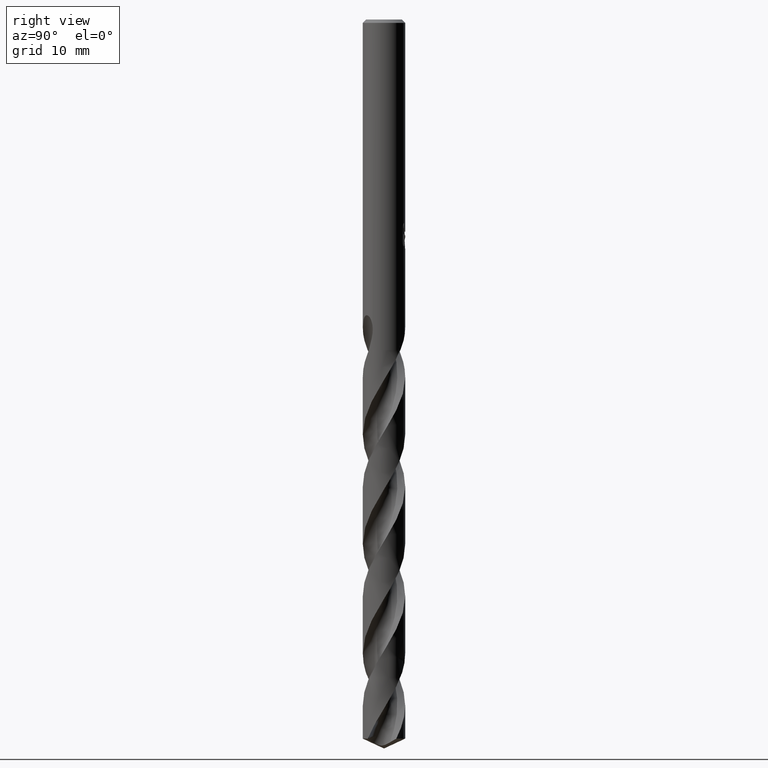
[diagram: clean part render]
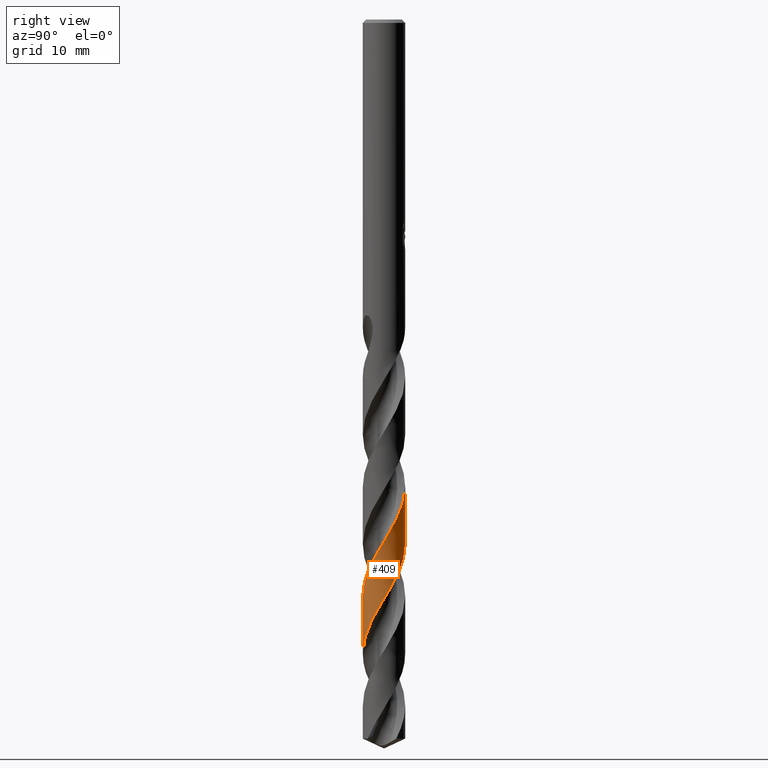
[diagram: same view with one face highlighted and labeled with its STEP entity id]
A machine part, right view. The second image highlights one B-rep face of the part: STEP entity #409.
In plain terms, the highlighted conical surface has half-angle 0 deg.
Its self-contained STEP definition (entity closure, byte-faithful):
#281=EDGE_CURVE('',#633,#401,#780,.T.);
#299=EDGE_CURVE('',#427,#709,#798,.T.);
#401=VERTEX_POINT('',#909);
#409=ADVANCED_FACE('',(#918),#919,.T.);
#427=VERTEX_POINT('',#939);
#621=EDGE_CURVE('',#633,#709,#1152,.T.);
#631=EDGE_CURVE('',#427,#401,#1163,.T.);
#633=VERTEX_POINT('',#1165);
#709=VERTEX_POINT('',#1247);
#780=B_SPLINE_CURVE_WITH_KNOTS('',3,(#1868,#1869,#1870,#1871,#1872,#1873,#1874,#1875,#1876,#1877,#1878,#1879,#1880,#1881,#1882,#1883,#1884,#1885,#1886,#1887,#1888,#1889,#1890,#1891,#1892,#1893,#1894,#1895,#1896,#1897,#1898,#1899,#1900,#1901,#1902,#1903,#1904,#1905,#1906,#1907,#1908,#1909,#1910,#1911,#1912,#1913,#1914,#1915,#1916,#1917,#1918,#1919,#1920,#1921,#1922,#1923,#1924,#1925,#1926,#1927,#1928,#1929,#1930,#1931,#1932,#1933,#1934,#1935,#1936,#1937,#1938,#1939,#1940,#1941,#1942,#1943,#1944,#1945,#1946,#1947,#1948,#1949,#1950,#1951,#1952,#1953,#1954,#1955,#1956,#1957,#1958,#1959,#1960,#1961,#1962,#1963,#1964,#1965,#1966,#1967,#1968,#1969,#1970,#1971,#1972,#1973,#1974,#1975,#1976,#1977,#1978,#1979,#1980,#1981,#1982,#1983,#1984,#1985,#1986,#1987,#1988,#1989,#1990,#1991,#1992,#1993,#1994,#1995,#1996,#1997,#1998,#1999,#2000,#2001,#2002,#2003,#2004,#2005,#2006,#2007,#2008,#2009,#2010,#2011,#2012,#2013,#2014,#2015,#2016,#2017,#2018,#2019,#2020,#2021,#2022,#2023,#2024,#2025,#2026,#2027,#2028,#2029,#2030,#2031,#2032,#2033,#2034,#2035,#2036,#2037,#2038,#2039,#2040,#2041,#2042,#2043,#2044,#2045,#2046,#2047,#2048,#2049,#2050,#2051,#2052,#2053),.UNSPECIFIED.,.F.,.F.,(4,2,2,2,2,2,2,2,2,2,2,2,2,2,2,2,2,2,2,2,2,2,2,2,2,2,2,2,2,2,2,2,2,2,2,2,2,2,2,2,2,2,2,2,2,2,2,2,2,2,2,2,2,2,2,2,2,2,2,2,2,2,2,2,2,2,2,2,2,2,2,2,2,2,2,2,2,2,2,2,2,2,2,2,2,2,2,2,2,2,2,2,4),(0.0,0.130197631691934,0.177790375154631,0.20352837875392,0.220477773174273,0.234485518691503,0.245967376914875,0.255309320033064,0.262862451433,0.268940527064288,0.273826369758257,0.277656987587669,0.28040462122601,0.282358492650839,0.283748031980026,0.558711843630576,0.62011222371354,0.66020049941823,0.692524605453398,0.729355090980869,0.792330234612566,0.833643482365751,0.901367118097999,1.15381635228199,1.40619876288596,1.58774940205914,1.67380141968575,1.85338322812626,2.29506270661106,4.13542105061356,5.00461126079501,5.17159259565805,6.53687756468259,6.93574310306155,7.68923974127355,8.12938232876279,8.5744064516874,9.98271598118927,10.3378960322548,11.1530445807223,11.5705488553828,11.9659135057265,13.4464712373786,13.4866936811887,14.69772421416,15.8444731832757,16.714434277566,16.8888541614119,18.1691452072515,19.0060888019089,19.8094675001382,20.6980458993568,21.5468583329051,21.9952297836868,23.406971863391,23.7585636740439,24.5787034695598,25.0165159198198,25.3966326474268,26.1676807432539,26.5856740651357,27.0259636646815,28.4423117199704,28.6178453861175,29.887606128225,30.8312605479075,31.6524604633438,32.0679552541681,33.5129706621341,33.6804597592663,35.0087108347904,35.4210594423622,36.8693705947139,36.9529259546718,38.1601294823307,39.3100676834008,40.1785708203634,40.3520111471677,41.6344169593832,42.094239637959,43.4947797878177,43.8509767470389,44.6579477207934,45.0744736150211,45.4741344429667,46.9419238798095,46.9825987660621,48.1656603916745,49.1883459185273,49.9640468392,50.5485074317741,51.4282284075704,52.3131001026529),.UNSPECIFIED.);
#798=B_SPLINE_CURVE_WITH_KNOTS('',3,(#2288,#2289,#2290,#2291,#2292,#2293,#2294,#2295,#2296,#2297,#2298,#2299,#2300,#2301,#2302,#2303,#2304,#2305,#2306,#2307,#2308,#2309,#2310,#2311,#2312,#2313,#2314,#2315,#2316,#2317,#2318,#2319,#2320,#2321,#2322,#2323,#2324,#2325,#2326,#2327,#2328,#2329,#2330,#2331,#2332,#2333,#2334,#2335,#2336,#2337,#2338,#2339,#2340,#2341,#2342,#2343,#2344,#2345,#2346,#2347,#2348,#2349,#2350,#2351,#2352,#2353,#2354,#2355,#2356,#2357,#2358,#2359,#2360,#2361,#2362,#2363,#2364,#2365,#2366,#2367,#2368,#2369,#2370,#2371,#2372,#2373,#2374,#2375,#2376,#2377,#2378,#2379,#2380,#2381,#2382,#2383,#2384,#2385,#2386,#2387,#2388,#2389,#2390,#2391,#2392,#2393,#2394,#2395,#2396,#2397,#2398,#2399,#2400,#2401,#2402,#2403,#2404,#2405,#2406,#2407,#2408,#2409,#2410,#2411,#2412,#2413,#2414,#2415,#2416,#2417,#2418,#2419,#2420,#2421,#2422,#2423,#2424,#2425,#2426,#2427,#2428,#2429,#2430,#2431,#2432,#2433,#2434,#2435,#2436,#2437,#2438,#2439),.UNSPECIFIED.,.F.,.F.,(4,2,2,2,2,2,2,2,2,2,2,2,2,2,2,2,2,2,2,2,2,2,2,2,2,2,2,2,2,2,2,2,2,2,2,2,2,2,2,2,2,2,2,2,2,2,2,2,2,2,2,2,2,2,2,2,2,2,2,2,2,2,2,2,2,2,2,2,2,2,2,2,2,2,2,4),(0.0,0.843083054638902,1.66804286657641,2.51310423940939,3.36250952221617,3.57473579094262,4.20621494976828,5.0525712826218,5.8978571349749,6.74385602508176,7.59183024873206,8.39977147456025,9.27828082982898,10.0859241058606,10.9794898650953,11.70412571583,12.1541521877217,12.8041614260335,13.6523683667618,14.4999247276601,15.3475843639569,16.1976753466537,16.9990964033029,17.8544970287512,19.2432046717288,19.3449379990912,20.1974135772461,20.6288419063677,21.4504111602038,22.3012801259191,23.149091867137,24.037501226588,24.9226112893588,25.8135300813571,26.6289010674702,27.4804265663469,28.3291974930779,29.1801095271964,30.0315289585334,30.8657588302019,31.7588635651947,32.5902035515715,33.484200048639,34.3068304630442,35.164152534063,35.9034489644532,36.3361763551521,36.9909870583652,37.8439098675173,38.6961846119663,39.5485741243822,40.403405385222,41.2114476260207,42.0714499378239,43.4738025513434,43.5735670078129,45.2229303149307,45.2884315362778,46.236365421632,46.6698779453753,47.4038655321789,48.1120624154248,49.4758027034848,49.9857161280815,50.8773361897484,52.1588135294673,52.4571576783106,52.8065841090327,53.0051249137027,53.1100647107522,53.1494684978502,53.1879739384339,53.2419326191836,53.3741587339091,53.566967698482,53.7365182293581),.UNSPECIFIED.);
#909=CARTESIAN_POINT('',(-3.8052472965525E-012,-2.4999632829156,-68.0052376304482));
#918=FACE_OUTER_BOUND('',#4148,.T.);
#919=CONICAL_SURFACE('',#4149,2.49995,2.18177545767606E-006);
#939=CARTESIAN_POINT('',(8.81288315411456E-015,-2.49997813426346,-74.8122386920678));
#1152=LINE('',#6170,#6171);
#1163=LINE('',#6369,#6370);
#1165=CARTESIAN_POINT('',(-3.84068124629203E-013,2.49993510164427,-55.0885686660213));
#1247=CARTESIAN_POINT('',(5.39811150002052E-015,2.49994995181934,-61.8950321944106));
#1868=CARTESIAN_POINT('',(1.73762264421359,-1.79726670554439,-39.005));
#1869=CARTESIAN_POINT('',(1.72221670660203,-1.81216149651107,-39.0427398167185));
#1870=CARTESIAN_POINT('',(1.70656102459511,-1.82691528514,-39.0805299842807));
#1871=CARTESIAN_POINT('',(1.68477385877601,-1.84691666771552,-39.132084126244));
#1872=CARTESIAN_POINT('',(1.67890608432564,-1.85225247355344,-39.1458701177844));
#1873=CARTESIAN_POINT('',(1.66979965999006,-1.86045409262312,-39.1671030968514));
#1874=CARTESIAN_POINT('',(1.6665921931476,-1.86332793147464,-39.1745512616789));
#1875=CARTESIAN_POINT('',(1.66125188771692,-1.86808786798156,-39.1869001818933));
#1876=CARTESIAN_POINT('',(1.65912641324893,-1.86997586772289,-39.1918015904184));
#1877=CARTESIAN_POINT('',(1.65523448034297,-1.87342108093971,-39.2007514112967));
#1878=CARTESIAN_POINT('',(1.65346990474639,-1.87497868454651,-39.2047998382906));
#1879=CARTESIAN_POINT('',(1.65025218076797,-1.87781090441237,-39.212164975987));
#1880=CARTESIAN_POINT('',(1.64880034837366,-1.87908581770011,-39.2154817723948));
#1881=CARTESIAN_POINT('',(1.64616271844481,-1.88139661034725,-39.2214959993082));
#1882=CARTESIAN_POINT('',(1.64497782184645,-1.88243270838049,-39.2241935325903));
#1883=CARTESIAN_POINT('',(1.64283190379387,-1.88430556600924,-39.2290712419937));
#1884=CARTESIAN_POINT('',(1.64187148753852,-1.88514248144522,-39.2312515116784));
#1885=CARTESIAN_POINT('',(1.64013624770314,-1.88665225103565,-39.2351857055944));
#1886=CARTESIAN_POINT('',(1.63936182347595,-1.88732521304038,-39.2369397048174));
#1887=CARTESIAN_POINT('',(1.63796360571177,-1.88853873039322,-39.2401032792832));
#1888=CARTESIAN_POINT('',(1.63734007017493,-1.88907935794587,-39.2415129095426));
#1889=CARTESIAN_POINT('',(1.63622685243884,-1.89004359162006,-39.2440274811753));
#1890=CARTESIAN_POINT('',(1.63573735022829,-1.89046725027963,-39.2451324661601));
#1891=CARTESIAN_POINT('',(1.63489625424158,-1.891194637869,-39.2470298910802));
#1892=CARTESIAN_POINT('',(1.63454479849379,-1.8914984089193,-39.2478223687147));
#1893=CARTESIAN_POINT('',(1.63394317152742,-1.89201811553894,-39.2491783095331));
#1894=CARTESIAN_POINT('',(1.6336930721942,-1.89223407362107,-39.2497417936993));
#1895=CARTESIAN_POINT('',(1.63326498410932,-1.89260357490171,-39.2507059733115));
#1896=CARTESIAN_POINT('',(1.63308703165996,-1.89275712955,-39.2511066795625));
#1897=CARTESIAN_POINT('',(1.59768827467727,-1.92329390334449,-39.3307973431245));
#1898=CARTESIAN_POINT('',(1.56173305940736,-1.95263587295688,-39.4079897389707));
#1899=CARTESIAN_POINT('',(1.51529937823476,-1.98833790221133,-39.5035335497088));
#1900=CARTESIAN_POINT('',(1.50676261699394,-1.99481519628202,-39.5209409170906));
#1901=CARTESIAN_POINT('',(1.49253845753209,-2.00546359211547,-39.5497064849976));
#1902=CARTESIAN_POINT('',(1.48689483832142,-2.00965156674779,-39.5610584803544));
#1903=CARTESIAN_POINT('',(1.47665217057268,-2.01718539954166,-39.5815589911225));
#1904=CARTESIAN_POINT('',(1.47206439422175,-2.02053587318609,-39.5907046804538));
#1905=CARTESIAN_POINT('',(1.46221438134983,-2.02767792271192,-39.6102676400649));
#1906=CARTESIAN_POINT('',(1.45694946715705,-2.03146429122998,-39.6206800899933));
#1907=CARTESIAN_POINT('',(1.442628801273,-2.04167882385011,-39.6488936967641));
#1908=CARTESIAN_POINT('',(1.43354321913018,-2.04806853251804,-39.6666768180992));
#1909=CARTESIAN_POINT('',(1.41841371424754,-2.05855855620309,-39.6961336551434));
#1910=CARTESIAN_POINT('',(1.41240151232439,-2.06268827216241,-39.707799013712));
#1911=CARTESIAN_POINT('',(1.39648492128253,-2.07351896923282,-39.7385934416108));
#1912=CARTESIAN_POINT('',(1.38645572626539,-2.08023988151913,-39.7579183246704));
#1913=CARTESIAN_POINT('',(1.33825286274896,-2.11202776867614,-39.850714132875));
#1914=CARTESIAN_POINT('',(1.29978397545996,-2.13590606280694,-39.9242667018336));
#1915=CARTESIAN_POINT('',(1.22212042341784,-2.18127377826482,-40.0713014549993));
#1916=CARTESIAN_POINT('',(1.18278949815126,-2.20284394519436,-40.1450416463482));
#1917=CARTESIAN_POINT('',(1.11440699690886,-2.23800040658369,-40.2717269713334));
#1918=CARTESIAN_POINT('',(1.08552744282208,-2.25214960499147,-40.324777766154));
#1919=CARTESIAN_POINT('',(1.0425864608196,-2.27217096786104,-40.4029347680828));
#1920=CARTESIAN_POINT('',(1.02871718540807,-2.27848388635326,-40.4280691486789));
#1921=CARTESIAN_POINT('',(0.985721204727634,-2.29758171853032,-40.505642046939));
#1922=CARTESIAN_POINT('',(0.956390312539644,-2.30994541040799,-40.5580870825097));
#1923=CARTESIAN_POINT('',(0.85411863468997,-2.3507720889934,-40.7395141183298));
#1924=CARTESIAN_POINT('',(0.780038376814157,-2.37638508301876,-40.8683905498814));
#1925=CARTESIAN_POINT('',(0.391432546729204,-2.4905832223596,-41.5344808162803));
#1926=CARTESIAN_POINT('',(0.0630625212742105,-2.52034468995881,-42.0661903146631));
#1927=CARTESIAN_POINT('',(-0.414954081738593,-2.47004641240514,-42.8573035585666));
#1928=CARTESIAN_POINT('',(-0.566565388169622,-2.43975026512842,-43.1103106485351));
#1929=CARTESIAN_POINT('',(-0.742925455909151,-2.38715091822364,-43.4126874771301));
#1930=CARTESIAN_POINT('',(-0.771184479173955,-2.37817201265883,-43.46140214519));
#1931=CARTESIAN_POINT('',(-1.02895446892957,-2.29119292955219,-43.9086842394604));
#1932=CARTESIAN_POINT('',(-1.246222100678,-2.18066355254979,-44.305789285099));
#1933=CARTESIAN_POINT('',(-1.50199192559868,-1.99965067337997,-44.8207858671826));
#1934=CARTESIAN_POINT('',(-1.55802988859462,-1.95630258915173,-44.9371220914516));
#1935=CARTESIAN_POINT('',(-1.71435643426653,-1.8244005612891,-45.2736474725385));
#1936=CARTESIAN_POINT('',(-1.80950686131011,-1.73007333497068,-45.493551775309));
#1937=CARTESIAN_POINT('',(-1.94757001603607,-1.56928413086855,-45.8421167710365));
#1938=CARTESIAN_POINT('',(-1.9956850681592,-1.50762424894824,-45.9705424846292));
#1939=CARTESIAN_POINT('',(-2.08650185248118,-1.37925304789749,-46.2289733195392));
#1940=CARTESIAN_POINT('',(-2.12905731640779,-1.31260746874783,-46.3587335521144));
#1941=CARTESIAN_POINT('',(-2.2928123543485,-1.0271901527444,-46.8999949869354));
#1942=CARTESIAN_POINT('',(-2.38406127359273,-0.792751671649316,-47.3094293713288));
#1943=CARTESIAN_POINT('',(-2.45282570176315,-0.487057406828887,-47.8243804051907));
#1944=CARTESIAN_POINT('',(-2.46433288196527,-0.425014239942788,-47.928047686551));
#1945=CARTESIAN_POINT('',(-2.4944724542108,-0.219435356481297,-48.2699172348265));
#1946=CARTESIAN_POINT('',(-2.50299728897073,-0.0746534747018654,-48.507793130346));
#1947=CARTESIAN_POINT('',(-2.49686002576894,0.144212957490745,-48.8678256379224));
#1948=CARTESIAN_POINT('',(-2.49148332503486,0.21822900258531,-48.9896765224248));
#1949=CARTESIAN_POINT('',(-2.47461731200151,0.361685688382168,-49.2270622464661));
#1950=CARTESIAN_POINT('',(-2.46348014434329,0.43105412794689,-49.3424160396705));
#1951=CARTESIAN_POINT('',(-2.39687484633294,0.757452923186245,-49.8904529944138));
#1952=CARTESIAN_POINT('',(-2.30396457229818,1.00528405973081,-50.3205361890221));
#1953=CARTESIAN_POINT('',(-2.17055308603022,1.24031396752464,-50.7647313014915));
#1954=CARTESIAN_POINT('',(-2.16699836542082,1.24651418986113,-50.7764794317106));
#1955=CARTESIAN_POINT('',(-2.05560329015403,1.43889572449611,-51.141950209957));
#1956=CARTESIAN_POINT('',(-1.92416368597859,1.61045055144872,-51.495028710087));
#1957=CARTESIAN_POINT('',(-1.62865684837542,1.90752571817185,-52.1838015390894));
#1958=CARTESIAN_POINT('',(-1.46784757861972,2.03384979617745,-52.5176359528675));
#1959=CARTESIAN_POINT('',(-1.16137488336555,2.21917361969995,-53.1069410608572));
#1960=CARTESIAN_POINT('',(-1.02199000828033,2.28672308679069,-53.3604313999156));
#1961=CARTESIAN_POINT('',(-0.84816495856232,2.35185825992236,-53.6655025816073));
#1962=CARTESIAN_POINT('',(-0.818942506058692,2.3621926687481,-53.716434109067));
#1963=CARTESIAN_POINT('',(-0.573692454286333,2.44382752921672,-54.1414779515867));
#1964=CARTESIAN_POINT('',(-0.348955845156309,2.48590158630499,-54.5145398194744));
#1965=CARTESIAN_POINT('',(0.0270049701198556,2.5042137038711,-55.133172526691));
#1966=CARTESIAN_POINT('',(0.175900721781753,2.4981661438644,-55.3772363046867));
#1967=CARTESIAN_POINT('',(0.464790630019287,2.46049045209599,-55.8567056201322));
#1968=CARTESIAN_POINT('',(0.604508127207441,2.42994963417364,-56.0910908322707));
#1969=CARTESIAN_POINT('',(0.891790187916859,2.34080265008148,-56.5854768256165));
#1970=CARTESIAN_POINT('',(1.03781802207958,2.27981064526435,-56.8445192605677));
#1971=CARTESIAN_POINT('',(1.31005776684883,2.13452043822235,-57.3523705681376));
#1972=CARTESIAN_POINT('',(1.43643422912037,2.05161726970483,-57.5999366736939));
#1973=CARTESIAN_POINT('',(1.61704404771828,1.908200772611,-57.9789697913505));
#1974=CARTESIAN_POINT('',(1.67704256855403,1.85568966506796,-58.1098135324369));
#1975=CARTESIAN_POINT('',(1.91507992162554,1.62637934374597,-58.6535023700562));
#1976=CARTESIAN_POINT('',(2.06860607526792,1.42604673790405,-59.0642372693762));
#1977=CARTESIAN_POINT('',(2.21989258043884,1.15139495551216,-59.5795583397742));
#1978=CARTESIAN_POINT('',(2.24797897965403,1.09554497042027,-59.6822649708418));
#1979=CARTESIAN_POINT('',(2.33448401091334,0.906172746965637,-60.0248192304892));
#1980=CARTESIAN_POINT('',(2.38334417837827,0.768544167049374,-60.2643350747688));
#1981=CARTESIAN_POINT('',(2.4394697607514,0.552069812022624,-60.6320494054249));
#1982=CARTESIAN_POINT('',(2.45547806654354,0.475843779199551,-60.7599187190838));
#1983=CARTESIAN_POINT('',(2.47869376922195,0.332245516732774,-60.9989730828821));
#1984=CARTESIAN_POINT('',(2.48676712163694,0.265130067113753,-61.1099826133352));
#1985=CARTESIAN_POINT('',(2.50295379315463,0.0611890432458317,-61.4465581442003));
#1986=CARTESIAN_POINT('',(2.50254783727316,-0.0760975509355209,-61.6718326116566));
#1987=CARTESIAN_POINT('',(2.48456595904931,-0.286714062247579,-62.0194656868122));
#1988=CARTESIAN_POINT('',(2.47494514790809,-0.360452726773932,-62.1415815466732));
#1989=CARTESIAN_POINT('',(2.44846419160717,-0.510794356497426,-62.392466046371));
#1990=CARTESIAN_POINT('',(2.43126888609692,-0.5872084209836,-62.521006894772));
#1991=CARTESIAN_POINT('',(2.34378585840931,-0.905438229859661,-63.0638943904809));
#1992=CARTESIAN_POINT('',(2.24071781460994,-1.13685271001943,-63.4760984893335));
#1993=CARTESIAN_POINT('',(2.08791099973608,-1.37527263652291,-63.9414963220553));
#1994=CARTESIAN_POINT('',(2.07057443762275,-1.40123825269819,-63.9927963335258));
#1995=CARTESIAN_POINT('',(1.92387226168762,-1.6122918312783,-64.4154455151227));
#1996=CARTESIAN_POINT('',(1.77039981297749,-1.77946931158946,-64.7857985956036));
#1997=CARTESIAN_POINT('',(1.46733549876896,-2.03098686246946,-65.4330911141026));
#1998=CARTESIAN_POINT('',(1.32771027914844,-2.12488071194854,-65.7084336920051));
#1999=CARTESIAN_POINT('',(1.05110823976007,-2.27294523278201,-66.2247321612019));
#2000=CARTESIAN_POINT('',(0.916555074963194,-2.33046755069035,-66.4644280308115));
#2001=CARTESIAN_POINT('',(0.707414663814484,-2.39892355644006,-66.8260802065756));
#2002=CARTESIAN_POINT('',(0.636191868321249,-2.41878568977234,-66.9474537002626));
#2003=CARTESIAN_POINT('',(0.313871505795749,-2.49345713728035,-67.4917215581982));
#2004=CARTESIAN_POINT('',(0.0559555701218009,-2.51253193179825,-67.9122698264701));
#2005=CARTESIAN_POINT('',(-0.230090474049039,-2.48953156010603,-68.3839003387893));
#2006=CARTESIAN_POINT('',(-0.259747627385579,-2.48661215041334,-68.4328772521698));
#2007=CARTESIAN_POINT('',(-0.524039116510788,-2.45581743613788,-68.8704749844882));
#2008=CARTESIAN_POINT('',(-0.753787608708955,-2.39531614341811,-69.2577490573857));
#2009=CARTESIAN_POINT('',(-1.03927316358877,-2.27489226859338,-69.766952240898));
#2010=CARTESIAN_POINT('',(-1.105588436384,-2.24341087420524,-69.8874546553969));
#2011=CARTESIAN_POINT('',(-1.39808258121933,-2.0884428371007,-70.4319729770323));
#2012=CARTESIAN_POINT('',(-1.60585443600939,-1.93327794485146,-70.8536139094994));
#2013=CARTESIAN_POINT('',(-1.79665837356913,-1.73841662099282,-71.3018286944971));
#2014=CARTESIAN_POINT('',(-1.806969169611,-1.72769681941928,-71.3262723399918));
#2015=CARTESIAN_POINT('',(-1.96476889494222,-1.56067977692155,-71.7040100544973));
#2016=CARTESIAN_POINT('',(-2.09163782320909,-1.38604458212879,-72.0566583464519));
#2017=CARTESIAN_POINT('',(-2.29266225644196,-1.01759313768856,-72.7465770315811));
#2018=CARTESIAN_POINT('',(-2.36824520196094,-0.826531470386686,-73.0819775389277));
#2019=CARTESIAN_POINT('',(-2.45853699579652,-0.478911544604253,-73.672929395726));
#2020=CARTESIAN_POINT('',(-2.48345117944621,-0.325995803755994,-73.9264821029627));
#2021=CARTESIAN_POINT('',(-2.49619537400605,-0.140879400776419,-74.2314305443617));
#2022=CARTESIAN_POINT('',(-2.49774502715785,-0.110036718990689,-74.2821744590137));
#2023=CARTESIAN_POINT('',(-2.50595432241123,0.149015588977321,-74.708375993145));
#2024=CARTESIAN_POINT('',(-2.48189028744175,0.377221687822196,-75.0827573818879));
#2025=CARTESIAN_POINT('',(-2.40753272958682,0.678523564709723,-75.5928016165654));
#2026=CARTESIAN_POINT('',(-2.38401872864657,0.757005231945601,-75.7272334419523));
#2027=CARTESIAN_POINT('',(-2.27350594938451,1.06922781795036,-76.2720234422488));
#2028=CARTESIAN_POINT('',(-2.15556214620688,1.29063053809352,-76.680323220964));
#2029=CARTESIAN_POINT('',(-1.9689033405407,1.54187020558961,-77.194691553241));
#2030=CARTESIAN_POINT('',(-1.92914774330758,1.59132898306147,-77.2989331435565));
#2031=CARTESIAN_POINT('',(-1.79337196716673,1.74767770416976,-77.6396320487338));
#2032=CARTESIAN_POINT('',(-1.68997388910827,1.84785583660583,-77.8757696663752));
#2033=CARTESIAN_POINT('',(-1.52098827708027,1.98545375382011,-78.2341000061357));
#2034=CARTESIAN_POINT('',(-1.46139083560941,2.02972279342811,-78.3559964139301));
#2035=CARTESIAN_POINT('',(-1.34089737142117,2.11116024884567,-78.5949982485233));
#2036=CARTESIAN_POINT('',(-1.28024337054756,2.14848201040419,-78.711916674286));
#2037=CARTESIAN_POINT('',(-0.989850328296239,2.31050846171311,-79.2589573412748));
#2038=CARTESIAN_POINT('',(-0.742928009755047,2.40133587891679,-79.6865503569095));
#2039=CARTESIAN_POINT('',(-0.479258855027438,2.45363243992912,-80.1283469856413));
#2040=CARTESIAN_POINT('',(-0.47214396176952,2.45501148851007,-80.1402585285471));
#2041=CARTESIAN_POINT('',(-0.257884383321668,2.49557454007906,-80.4987255787633));
#2042=CARTESIAN_POINT('',(-0.046558778793296,2.50843639922293,-80.8447344743241));
#2043=CARTESIAN_POINT('',(0.345742673208156,2.48267030340087,-81.490977698953));
#2044=CARTESIAN_POINT('',(0.525700775519718,2.45087178072892,-81.7895612282239));
#2045=CARTESIAN_POINT('',(0.833124948074687,2.36113463721112,-82.316646598516));
#2046=CARTESIAN_POINT('',(0.962351364761756,2.31148685166901,-82.5435906723143));
#2047=CARTESIAN_POINT('',(1.18068039285936,2.20608833422603,-82.9421012265571));
#2048=CARTESIAN_POINT('',(1.27154488376819,2.15499326711574,-83.113060283767));
#2049=CARTESIAN_POINT('',(1.49048551989736,2.01320647504705,-83.54215790713));
#2050=CARTESIAN_POINT('',(1.61378375678757,1.91580023120019,-83.7995503167885));
#2051=CARTESIAN_POINT('',(1.84123677009895,1.69844936358085,-84.3165646011871));
#2052=CARTESIAN_POINT('',(1.94461385109078,1.57901363480882,-84.5747545377035));
#2053=CARTESIAN_POINT('',(2.03601740058076,1.45073538060268,-84.8342308546125));
#2288=CARTESIAN_POINT('',(-1.61904416076534,1.9049136477782,-84.8342308546125));
#2289=CARTESIAN_POINT('',(-1.73030245048948,1.81035114924859,-84.5941140361506));
#2290=CARTESIAN_POINT('',(-1.83285812364687,1.70643502484931,-84.3523628425534));
#2291=CARTESIAN_POINT('',(-2.01694541256704,1.48401810570645,-83.8771588573506));
#2292=CARTESIAN_POINT('',(-2.09844005231934,1.36637078175123,-83.6435267278447));
#2293=CARTESIAN_POINT('',(-2.24223578281594,1.11525833942451,-83.1680450574665));
#2294=CARTESIAN_POINT('',(-2.30364667208482,0.982153947810092,-82.926498494044));
#2295=CARTESIAN_POINT('',(-2.40279534109374,0.705836091355642,-82.4440535319063));
#2296=CARTESIAN_POINT('',(-2.44016675337095,0.563215823820068,-82.2035854338965));
#2297=CARTESIAN_POINT('',(-2.47092775821712,0.38188458335885,-81.9013657760394));
#2298=CARTESIAN_POINT('',(-2.47627126519853,0.345535898857718,-81.8409538259136));
#2299=CARTESIAN_POINT('',(-2.4943121719894,0.200743870630057,-81.6006164399236));
#2300=CARTESIAN_POINT('',(-2.50071407449235,0.0915018902334625,-81.4199131088757));
#2301=CARTESIAN_POINT('',(-2.49887374981121,-0.16464990555372,-80.9986717059998));
#2302=CARTESIAN_POINT('',(-2.48491029320295,-0.311008745782048,-80.7588451766232));
#2303=CARTESIAN_POINT('',(-2.43146650675097,-0.59951354861451,-80.2768715720761));
#2304=CARTESIAN_POINT('',(-2.39217949408288,-0.740853995146749,-80.0349574193276));
#2305=CARTESIAN_POINT('',(-2.28929284418535,-1.01516332526188,-79.5530813389774));
#2306=CARTESIAN_POINT('',(-2.22584375494678,-1.14763909978102,-79.3134486132993));
#2307=CARTESIAN_POINT('',(-2.07618475171659,-1.40036000131957,-78.8310691637181));
#2308=CARTESIAN_POINT('',(-1.99036771871385,-1.51983914447561,-78.588533935986));
#2309=CARTESIAN_POINT('',(-1.80336668681012,-1.73705269492233,-78.1169892513679));
#2310=CARTESIAN_POINT('',(-1.70333743422637,-1.83525984627696,-77.8881531586018));
#2311=CARTESIAN_POINT('',(-1.47828803533214,-2.02182395238271,-77.4082574275265));
#2312=CARTESIAN_POINT('',(-1.35259123307695,-2.10795815705749,-77.1572310045832));
#2313=CARTESIAN_POINT('',(-1.0981125261393,-2.25023593837381,-76.6774093570044));
#2314=CARTESIAN_POINT('',(-0.97062539408151,-2.30810908220714,-76.4488177316941));
#2315=CARTESIAN_POINT('',(-0.693020451042249,-2.40698662992373,-75.9651304596905));
#2316=CARTESIAN_POINT('',(-0.542904371539681,-2.44519458044319,-75.7100770532001));
#2317=CARTESIAN_POINT('',(-0.26683020752651,-2.48884768927043,-75.2499859275215));
#2318=CARTESIAN_POINT('',(-0.141778061734029,-2.49910575910554,-75.0448607245617));
#2319=CARTESIAN_POINT('',(0.0615749082536149,-2.50043352911697,-74.7112109707396));
#2320=CARTESIAN_POINT('',(0.139363901202381,-2.49729948474765,-74.583545042677));
#2321=CARTESIAN_POINT('',(0.328600999998196,-2.48082739658658,-74.270796852484));
#2322=CARTESIAN_POINT('',(0.439679271707452,-2.46357560366053,-74.0851852269267));
#2323=CARTESIAN_POINT('',(0.692480264582732,-2.40663092380166,-73.6590514114439));
#2324=CARTESIAN_POINT('',(0.832524417716884,-2.36184897511326,-73.4192066326005));
#2325=CARTESIAN_POINT('',(1.10313463218582,-2.24821777481941,-72.9370961990108));
#2326=CARTESIAN_POINT('',(1.23294784022147,-2.17971739408404,-72.6950548585672));
#2327=CARTESIAN_POINT('',(1.47910617013291,-2.0207852941405,-72.2130964248914));
#2328=CARTESIAN_POINT('',(1.59502062454969,-1.93061581807798,-71.9735120292661));
#2329=CARTESIAN_POINT('',(1.81012492314567,-1.73058784604798,-71.4911062929622));
#2330=CARTESIAN_POINT('',(1.90863487692411,-1.62127069557093,-71.248495559264));
#2331=CARTESIAN_POINT('',(2.08022417426271,-1.39343842230922,-70.7792262313213));
#2332=CARTESIAN_POINT('',(2.15422318487272,-1.27608056994084,-70.5527067255508));
#2333=CARTESIAN_POINT('',(2.28640130922515,-1.02181147127716,-70.0822799818975));
#2334=CARTESIAN_POINT('',(2.34275473876187,-0.884926485191384,-69.8384483404955));
#2335=CARTESIAN_POINT('',(2.45793582158303,-0.515487504847443,-69.2013199327216));
#2336=CARTESIAN_POINT('',(2.49591011258483,-0.278055587927695,-68.8128425207468));
#2337=CARTESIAN_POINT('',(2.499930989591,-0.0217223641545861,-68.3895151217758));
#2338=CARTESIAN_POINT('',(2.50002175396793,-0.00424837775075665,-68.3606285495612));
#2339=CARTESIAN_POINT('',(2.49915019924383,0.159964767496961,-68.0894699416692));
#2340=CARTESIAN_POINT('',(2.48546049502866,0.306629436197261,-67.8486557812975));
#2341=CARTESIAN_POINT('',(2.44536437244894,0.524944829367527,-67.484526824171));
#2342=CARTESIAN_POINT('',(2.4286241101351,0.597613311246589,-67.3623254604227));
#2343=CARTESIAN_POINT('',(2.37070458025325,0.80602850984963,-67.0067764584283));
#2344=CARTESIAN_POINT('',(2.32122246776111,0.939060250652559,-66.7726143906741));
#2345=CARTESIAN_POINT('',(2.19799538430979,1.20007441098044,-66.2980436474902));
#2346=CARTESIAN_POINT('',(2.12371584788076,1.32710549047304,-66.058008703047));
#2347=CARTESIAN_POINT('',(1.95396428366383,1.56628269768317,-65.5761555837299));
#2348=CARTESIAN_POINT('',(1.85903937146143,1.6778392418689,-65.3345800072696));
#2349=CARTESIAN_POINT('',(1.64575197011054,1.88805827091301,-64.8420752481627));
#2350=CARTESIAN_POINT('',(1.52693662358572,1.98538408590421,-64.5916649037517));
#2351=CARTESIAN_POINT('',(1.27335770575677,2.15677208387363,-64.0887836839792));
#2352=CARTESIAN_POINT('',(1.13937866480618,2.23044735107211,-63.8366731064856));
#2353=CARTESIAN_POINT('',(0.858581891928742,2.35291684999655,-63.3330724789955));
#2354=CARTESIAN_POINT('',(0.71237527076837,2.40122792160595,-63.0820490343108));
#2355=CARTESIAN_POINT('',(0.425635870825854,2.4674619134205,-62.5983021714177));
#2356=CARTESIAN_POINT('',(0.286337834313165,2.48747501343491,-62.366114883144));
#2357=CARTESIAN_POINT('',(-0.000591860060096094,2.50425789139857,-61.8935342815508));
#2358=CARTESIAN_POINT('',(-0.14766219961626,2.49990417220757,-61.6535266104694));
#2359=CARTESIAN_POINT('',(-0.438946053354627,2.46546278084147,-61.171647202568));
#2360=CARTESIAN_POINT('',(-0.582375298553907,2.43556400404885,-60.9300158030611));
#2361=CARTESIAN_POINT('',(-0.862780753685874,2.35092432765367,-60.4483074220251));
#2362=CARTESIAN_POINT('',(-0.999205235204347,2.29627003413885,-60.2085586219782));
#2363=CARTESIAN_POINT('',(-1.26108383185074,2.16355151811865,-59.7263341120705));
#2364=CARTESIAN_POINT('',(-1.38578311146573,2.08586312363154,-59.4840767003682));
#2365=CARTESIAN_POINT('',(-1.61774076048055,1.91135297513945,-59.0065741664307));
#2366=CARTESIAN_POINT('',(-1.72493910908412,1.81520989903585,-58.7715906624558));
#2367=CARTESIAN_POINT('',(-1.92867812230151,1.59800504374051,-58.2825898797425));
#2368=CARTESIAN_POINT('',(-2.02328026032296,1.47637024982219,-58.0286466832588));
#2369=CARTESIAN_POINT('',(-2.18317198864898,1.22634914997775,-57.5404355260836));
#2370=CARTESIAN_POINT('',(-2.24980728901631,1.09935754489893,-57.3063910415296));
#2371=CARTESIAN_POINT('',(-2.36483379512379,0.825218356240182,-56.8182431711396));
#2372=CARTESIAN_POINT('',(-2.41110395389335,0.678167063316389,-56.5642015511659));
#2373=CARTESIAN_POINT('',(-2.47344459644849,0.389583822936428,-56.0784893706862));
#2374=CARTESIAN_POINT('',(-2.4915439791248,0.248923616401569,-55.8470069211967));
#2375=CARTESIAN_POINT('',(-2.50397037978552,-0.040125233626511,-55.3719950769796));
#2376=CARTESIAN_POINT('',(-2.49722574289397,-0.187688634145946,-55.1285774002125));
#2377=CARTESIAN_POINT('',(-2.46062245982718,-0.45949462860944,-54.677141770547));
#2378=CARTESIAN_POINT('',(-2.43409213820059,-0.584005096307821,-54.4690523504952));
#2379=CARTESIAN_POINT('',(-2.3771040712038,-0.777554355239642,-54.1379884864387));
#2380=CARTESIAN_POINT('',(-2.35290587832057,-0.847950141189766,-54.0158907032877));
#2381=CARTESIAN_POINT('',(-2.28439675124643,-1.02168277241147,-53.708406912995));
#2382=CARTESIAN_POINT('',(-2.23612661284262,-1.12342390162272,-53.5224593546359));
#2383=CARTESIAN_POINT('',(-2.10939359474048,-1.34967934549152,-53.0959944164245));
#2384=CARTESIAN_POINT('',(-2.02655581526518,-1.47114698188294,-52.8561522401026));
#2385=CARTESIAN_POINT('',(-1.84051269829731,-1.69813925406976,-52.3740458238015));
#2386=CARTESIAN_POINT('',(-1.73785589977916,-1.80304197393802,-52.1320062399833));
#2387=CARTESIAN_POINT('',(-1.51535660147458,-1.99368964012812,-51.6500469919517));
#2388=CARTESIAN_POINT('',(-1.39588866439931,-2.0790956815578,-51.4104603342242));
#2389=CARTESIAN_POINT('',(-1.14284744946424,-2.22826431662257,-50.9280517234065));
#2390=CARTESIAN_POINT('',(-1.00998652183057,-2.29152984263658,-50.6854413016916));
#2391=CARTESIAN_POINT('',(-0.742348439119781,-2.39119227490734,-50.2155613984915));
#2392=CARTESIAN_POINT('',(-0.608400721342672,-2.42874158141669,-49.9884414015396));
#2393=CARTESIAN_POINT('',(-0.326648635945023,-2.48290089428124,-49.517448757492));
#2394=CARTESIAN_POINT('',(-0.179404602769916,-2.4978344479166,-49.27365545625));
#2395=CARTESIAN_POINT('',(0.208534829191451,-2.50278913620691,-48.6348977346239));
#2396=CARTESIAN_POINT('',(0.447917860191187,-2.47113316913466,-48.2448220177735));
#2397=CARTESIAN_POINT('',(0.695181210113231,-2.40137678569141,-47.8205158323327));
#2398=CARTESIAN_POINT('',(0.71153966994465,-2.39658076153987,-47.7923365959638));
#2399=CARTESIAN_POINT('',(0.998217906634834,-2.30932837857024,-47.2975478025832));
#2400=CARTESIAN_POINT('',(1.25240467055248,-2.18191228811725,-46.8407382651516));
#2401=CARTESIAN_POINT('',(1.48893047849104,-2.00818125110026,-46.3559812673173));
#2402=CARTESIAN_POINT('',(1.49790641953692,-2.0014949786094,-46.3374795783907));
#2403=CARTESIAN_POINT('',(1.63634040544424,-1.89691906070151,-46.0509003583003));
#2404=CARTESIAN_POINT('',(1.7562801853737,-1.7865162574068,-45.7847729356497));
#2405=CARTESIAN_POINT('',(1.91452974939334,-1.609256355639,-45.3949614681343));
#2406=CARTESIAN_POINT('',(1.96162912948107,-1.55148919504226,-45.2727826198));
#2407=CARTESIAN_POINT('',(2.08123427460939,-1.39065001153679,-44.9431093075507));
#2408=CARTESIAN_POINT('',(2.14861166535743,-1.28409992328642,-44.7349916814436));
#2409=CARTESIAN_POINT('',(2.26477911540234,-1.06541977658218,-44.3277294455708));
#2410=CARTESIAN_POINT('',(2.31395088964561,-0.953946760260867,-44.1285452549173));
#2411=CARTESIAN_POINT('',(2.43354576332696,-0.61837349209408,-43.5438203722177));
#2412=CARTESIAN_POINT('',(2.48079967475279,-0.3875649772515,-43.1578797863666));
#2413=CARTESIAN_POINT('',(2.50057849672728,-0.0658796611811111,-42.6292237961722));
#2414=CARTESIAN_POINT('',(2.50134721771636,0.0218442688075326,-42.4856403006997));
#2415=CARTESIAN_POINT('',(2.49080941837004,0.262439961879086,-42.0900498253148));
#2416=CARTESIAN_POINT('',(2.47007431088189,0.414292688459246,-41.8370630213766));
#2417=CARTESIAN_POINT('',(2.38611773564585,0.777335652868665,-41.2237364500792));
#2418=CARTESIAN_POINT('',(2.30845707198406,0.984614900919968,-40.8655061828281));
#2419=CARTESIAN_POINT('',(2.17979115165506,1.22502147156245,-40.4210179153849));
#2420=CARTESIAN_POINT('',(2.15414104078729,1.26958021156559,-40.336710163907));
#2421=CARTESIAN_POINT('',(2.09550034651407,1.36455718929331,-40.1497356874433));
#2422=CARTESIAN_POINT('',(2.06263280878416,1.4136531413964,-40.0486529227457));
#2423=CARTESIAN_POINT('',(2.00953650359871,1.48739933921052,-39.8883603029716));
#2424=CARTESIAN_POINT('',(1.99004499290334,1.513359030171,-39.8301181389715));
#2425=CARTESIAN_POINT('',(1.95991721282118,1.55194043683137,-39.7405640691349));
#2426=CARTESIAN_POINT('',(1.95023548680738,1.56416620366195,-39.7114964681011));
#2427=CARTESIAN_POINT('',(1.93026155687748,1.58860685425693,-39.6563213121148));
#2428=CARTESIAN_POINT('',(1.92470807583987,1.59533187506764,-39.6413232635585));
#2429=CARTESIAN_POINT('',(1.91351971437286,1.60873348786511,-39.6117878069343));
#2430=CARTESIAN_POINT('',(1.90789157364629,1.61540529201777,-39.5972529709433));
#2431=CARTESIAN_POINT('',(1.89413115851364,1.63154112689925,-39.5624924148454));
#2432=CARTESIAN_POINT('',(1.88590484459704,1.64104598486182,-39.5423350376752));
#2433=CARTESIAN_POINT('',(1.85681004976999,1.67413885662698,-39.4731925000309));
#2434=CARTESIAN_POINT('',(1.8349649621341,1.69809806134363,-39.4249278718643));
#2435=CARTESIAN_POINT('',(1.77806069004196,1.75795440209318,-39.3080385891196));
#2436=CARTESIAN_POINT('',(1.74173499648867,1.79408056411168,-39.2406336294798));
#2437=CARTESIAN_POINT('',(1.66809829240026,1.86256905595607,-39.1167838797975));
#2438=CARTESIAN_POINT('',(1.63162777297246,1.89467743936224,-39.0603231056724));
#2439=CARTESIAN_POINT('',(1.5930083538373,1.92660957361547,-39.005));
#4148=EDGE_LOOP('',(#8790,#8791,#8792,#8793));
#4149=AXIS2_PLACEMENT_3D('',#8794,#8795,#8796);
#6170=CARTESIAN_POINT('',(-3.06007252110753E-016,2.49995,-61.9171154273063));
#6171=VECTOR('',#9087,1.0);
#6369=CARTESIAN_POINT('',(3.06283678736897E-016,-2.49995,-61.9171154273063));
#6370=VECTOR('',#9101,1.0);
#8790=ORIENTED_EDGE('',*,*,#621,.F.);
#8791=ORIENTED_EDGE('',*,*,#281,.T.);
#8792=ORIENTED_EDGE('',*,*,#631,.F.);
#8793=ORIENTED_EDGE('',*,*,#299,.T.);
#8794=CARTESIAN_POINT('',(0.0,0.0,-61.9171154273063));
#8795=DIRECTION('',(0.0,-0.0,-1.0));
#8796=DIRECTION('',(0.0,1.0,0.0));
#9087=DIRECTION('',(-2.67181608808171E-022,2.18177545767433E-006,-0.99999999999762));
#9101=DIRECTION('',(-2.67181608808171E-022,2.18177545767433E-006,0.99999999999762));